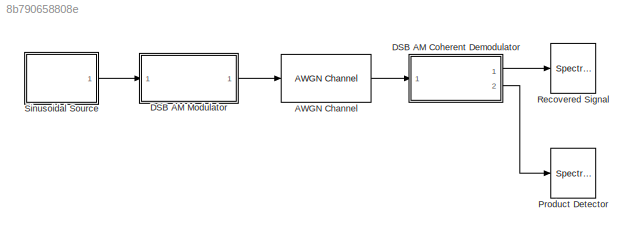
MODEL slx_8b790658808e
KIND model
BLOCK [Reference] AWGN Channel  REF=commchan3/AWGN
Channel
  EbNodB = 10
  EsNodB = 10
  InputProcessing = Inherited (this choice will be removed - see release notes)
  Ports = [1, 1]
  Ps = 1
  SNRdB = 10
  SourceBlock = commchan3/AWGN\nChannel
  SourceType = AWGN Channel
  Tsym = 1
  UserDataPersistent = on
  bitsPerSym = 1
  noiseMode = Variance from mask
  seed = randseed
  variance = 0
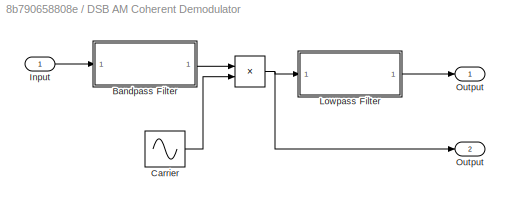
BLOCK [SubSystem] DSB AM Coherent Demodulator
  Ports = [1, 2]
  RequestExecContextInheritance = off
BLOCK [Product] DSB AM Coherent Demodulator/ 
  InputSameDT = off
  OutDataTypeStr = Inherit: Inherit via internal rule
  Ports = [2, 1]
  SaturateOnIntegerOverflow = off
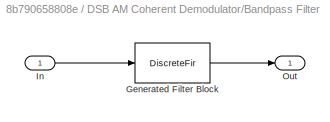
BLOCK [SubSystem] DSB AM Coherent Demodulator/Bandpass Filter
  CopyFcn = fdesignblkfcn(gcbh, {'CopyFcn'});
  DialogController = fdesignblkfcn
  InitFcn = fdesignblkfcn(gcbh, {'InitFcn'});
  Ports = [1, 1]
  RequestExecContextInheritance = off
  UserDataPersistent = on
BLOCK [DiscreteFir] DSB AM Coherent Demodulator/Bandpass Filter/Generated Filter Block
  Coefficients = [9.9730629802221817e-05 -0.00092342257240285246 -0.00024971712843249217 -0.00017776552061724753 -0.00015764989760538211 -0.00013228098314588775 -9.7585515078851283e-05 -5.5794755472452894e-05 -1.0755393100970816e-05 3.3346362879018571e-05 7.2157178274305902e-05 0.0001020059357764694 0.0001199493175757586 0.00012469451246417186 0.00011630561243042238 9.6815822907801567e-05 6.9650774577275135e-05 3....<+7057ch>
  Ports = [1, 1]
  Tag = BlockMethodSubSystem
BLOCK [Inport] DSB AM Coherent Demodulator/Bandpass Filter/In
  IconDisplay = Port number
BLOCK [Outport] DSB AM Coherent Demodulator/Bandpass Filter/Out
  IconDisplay = Port number
BLOCK [Sin] DSB AM Coherent Demodulator/Carrier
  Frequency = 40000*pi
  Ports = [0, 1]
  SampleTime = 2e-6
BLOCK [Inport] DSB AM Coherent Demodulator/Input
  IconDisplay = Port number
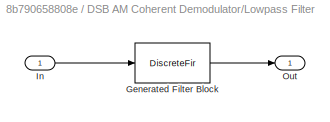
BLOCK [SubSystem] DSB AM Coherent Demodulator/Lowpass Filter
  CopyFcn = fdesignblkfcn(gcbh, {'CopyFcn'});
  DialogController = fdesignblkfcn
  InitFcn = fdesignblkfcn(gcbh, {'InitFcn'});
  Ports = [1, 1]
  RequestExecContextInheritance = off
  UserDataPersistent = on
BLOCK [DiscreteFir] DSB AM Coherent Demodulator/Lowpass Filter/Generated Filter Block
  Coefficients = [0.00044688424903677106 -0.0002269396530557809 -0.00018451943627153849 -0.00015595035795888841 -0.00013646791283184617 -0.0001246465241434068 -0.00011742455149828799 -0.00011461457136234944 -0.00011404581504533614 -0.00011618396319684678 -0.00011931991748753365 -0.00012426924084328909 -0.00012955735971335457 -0.00013619047024976806 -0.00014280635094127646 -0.00015052585146214383 -0.000158022194099...<+22373ch>
  InputProcessing = Columns as channels (frame based)
  Ports = [1, 1]
  Tag = BlockMethodSubSystem
BLOCK [Inport] DSB AM Coherent Demodulator/Lowpass Filter/In
  IconDisplay = Port number
BLOCK [Outport] DSB AM Coherent Demodulator/Lowpass Filter/Out
  IconDisplay = Port number
BLOCK [Outport] DSB AM Coherent Demodulator/Output
  IconDisplay = Port number
BLOCK [Outport] DSB AM Coherent Demodulator/Output 
  IconDisplay = Port number
  Port = 2
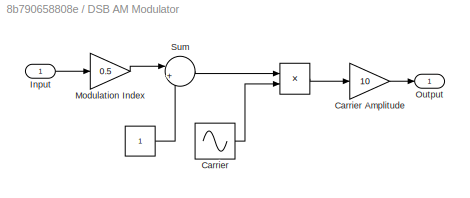
BLOCK [SubSystem] DSB AM Modulator
  Ports = [1, 1]
  RequestExecContextInheritance = off
BLOCK [Product] DSB AM Modulator/ 
  InputSameDT = off
  OutDataTypeStr = Inherit: Inherit via internal rule
  Ports = [2, 1]
  SaturateOnIntegerOverflow = off
BLOCK [Constant] DSB AM Modulator/  
BLOCK [Sin] DSB AM Modulator/Carrier
  Frequency = 40000*pi
  Ports = [0, 1]
  SampleTime = 2e-6
BLOCK [Gain] DSB AM Modulator/Carrier Amplitude
  Gain = 10
  OutDataTypeStr = Inherit: Inherit via internal rule
  ParamDataTypeStr = Inherit: Inherit via internal rule
  SaturateOnIntegerOverflow = off
BLOCK [Inport] DSB AM Modulator/Input
  IconDisplay = Port number
BLOCK [Gain] DSB AM Modulator/Modulation Index
  Gain = 0.5
  OutDataTypeStr = Inherit: Inherit via internal rule
  ParamDataTypeStr = Inherit: Inherit via internal rule
  SaturateOnIntegerOverflow = off
BLOCK [Outport] DSB AM Modulator/Output
  IconDisplay = Port number
BLOCK [Sum] DSB AM Modulator/Sum
  IconShape = round
  InputSameDT = off
  Inputs = |++
  OutDataTypeStr = Inherit: Inherit via internal rule
  Ports = [2, 1]
  SaturateOnIntegerOverflow = off
BLOCK [SpectrumAnalyzer] Product Detector
  Ports = [1]
BLOCK [SpectrumAnalyzer] Recovered Signal
  Ports = [1]
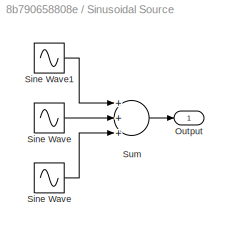
BLOCK [SubSystem] Sinusoidal Source
  Ports = [0, 1]
  RequestExecContextInheritance = off
BLOCK [Sin] Sinusoidal Source/ Sine Wave 
  Amplitude = 0.2
  Frequency = 5000*pi
  Ports = [0, 1]
  SampleTime = 2e-6
BLOCK [Outport] Sinusoidal Source/Output
  IconDisplay = Port number
BLOCK [Sin] Sinusoidal Source/Sine Wave 
  Amplitude = 0.5
  Frequency = 3000*pi
  Ports = [0, 1]
  SampleTime = 2e-6
BLOCK [Sin] Sinusoidal Source/Sine Wave1
  Frequency = 1000*pi
  Ports = [0, 1]
  SampleTime = 2e-6
BLOCK [Sum] Sinusoidal Source/Sum
  InputSameDT = off
  Inputs = +++
  OutDataTypeStr = Inherit: Inherit via internal rule
  Ports = [3, 1]
  SaturateOnIntegerOverflow = off
LINE AWGN Channel:1 -> DSB AM Coherent Demodulator:1
NET DSB AM Coherent Demodulator/ :1 -> DSB AM Coherent Demodulator/Lowpass Filter:1, DSB AM Coherent Demodulator/Output :1
LINE DSB AM Coherent Demodulator/Bandpass Filter:1 -> DSB AM Coherent Demodulator/ :1
LINE DSB AM Coherent Demodulator/Carrier:1 -> DSB AM Coherent Demodulator/ :2
LINE DSB AM Coherent Demodulator/Input:1 -> DSB AM Coherent Demodulator/Bandpass Filter:1
LINE DSB AM Coherent Demodulator/Lowpass Filter:1 -> DSB AM Coherent Demodulator/Output:1
LINE DSB AM Coherent Demodulator:1 -> Recovered Signal:1
LINE DSB AM Coherent Demodulator:2 -> Product Detector:1
LINE DSB AM Modulator/  :1 -> DSB AM Modulator/Sum:2
LINE DSB AM Modulator/ :1 -> DSB AM Modulator/Carrier Amplitude:1
LINE DSB AM Modulator/Carrier Amplitude:1 -> DSB AM Modulator/Output:1
LINE DSB AM Modulator/Carrier:1 -> DSB AM Modulator/ :2
LINE DSB AM Modulator/Input:1 -> DSB AM Modulator/Modulation Index:1
LINE DSB AM Modulator/Modulation Index:1 -> DSB AM Modulator/Sum:1
LINE DSB AM Modulator/Sum:1 -> DSB AM Modulator/ :1
LINE DSB AM Modulator:1 -> AWGN Channel:1
LINE Sinusoidal Source/ Sine Wave :1 -> Sinusoidal Source/Sum:3
LINE Sinusoidal Source/Sine Wave :1 -> Sinusoidal Source/Sum:2
LINE Sinusoidal Source/Sine Wave1:1 -> Sinusoidal Source/Sum:1
LINE Sinusoidal Source/Sum:1 -> Sinusoidal Source/Output:1
LINE Sinusoidal Source:1 -> DSB AM Modulator:1
note: NET lines group one-source signal fan-out (src -> all destinations, sorted); 1:1 wires keep LINE
